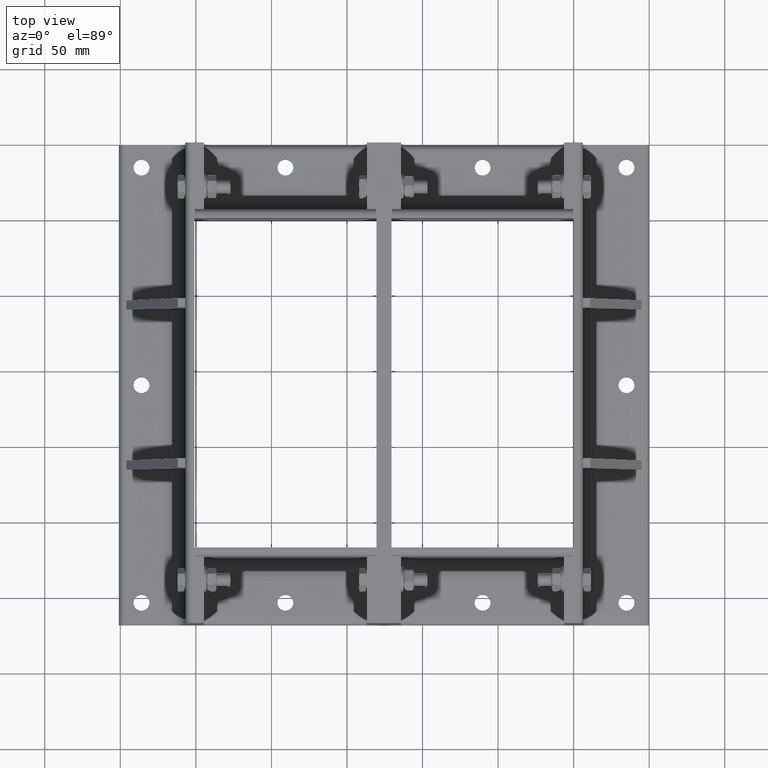
[diagram: clean part render]
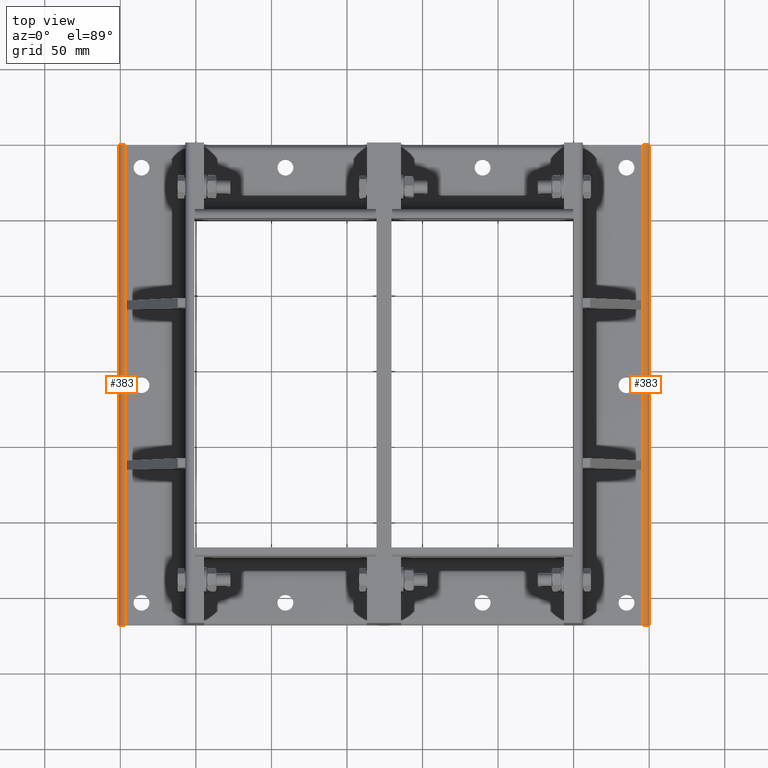
[diagram: same view with one multi-face feature highlighted, each face labeled with its STEP entity id]
A machine part, top view. The highlighted faces form ONE feature: a constant-radius fillet chain: 2 tangent blend faces with common blend radius 4.5 mm. The faces share edges in the B-rep.
Their STEP definitions:
[1] entity #383 (Cylinder):
#317=CARTESIAN_POINT('',(45.499999999999986,0.0,5.999999999999991));
#318=VERTEX_POINT('',#317);
#325=CARTESIAN_POINT('',(45.499999999999986,318.0,5.999999999999991));
#326=VERTEX_POINT('',#325);
#327=CARTESIAN_POINT('',(45.499999999999986,318.0,5.999999999999991));
#328=DIRECTION('',(0.0,-1.0,0.0));
#329=VECTOR('',#328,318.0);
#330=LINE('',#327,#329);
#331=EDGE_CURVE('',#326,#318,#330,.T.);
#351=CARTESIAN_POINT('',(45.499999999999986,0.0,1.499999999999991));
#352=DIRECTION('',(0.0,1.0,0.0));
#353=DIRECTION('',(0.707106781186547,0.0,0.707106781186548));
#354=AXIS2_PLACEMENT_3D('',#351,#352,#353);
#355=CYLINDRICAL_SURFACE('',#354,4.5);
#356=CARTESIAN_POINT('',(49.999999999999993,318.0,1.499999999999991));
#357=VERTEX_POINT('',#356);
#358=CARTESIAN_POINT('',(45.499999999999986,318.0,1.499999999999991));
#359=DIRECTION('',(0.0,-1.0,0.0));
#360=DIRECTION('',(0.707106781186547,0.0,0.707106781186548));
#361=AXIS2_PLACEMENT_3D('',#358,#359,#360);
#362=CIRCLE('',#361,4.5);
#363=EDGE_CURVE('',#357,#326,#362,.T.);
#364=ORIENTED_EDGE('',*,*,#363,.T.);
#365=ORIENTED_EDGE('',*,*,#331,.T.);
#366=CARTESIAN_POINT('',(49.999999999999993,0.0,1.499999999999991));
#367=VERTEX_POINT('',#366);
#368=CARTESIAN_POINT('',(45.499999999999986,0.0,1.499999999999991));
#369=DIRECTION('',(0.0,1.0,0.0));
#370=DIRECTION('',(0.707106781186547,0.0,0.707106781186548));
#371=AXIS2_PLACEMENT_3D('',#368,#369,#370);
#372=CIRCLE('',#371,4.5);
#373=EDGE_CURVE('',#318,#367,#372,.T.);
#374=ORIENTED_EDGE('',*,*,#373,.T.);
#375=CARTESIAN_POINT('',(49.999999999999993,0.0,1.499999999999991));
#376=DIRECTION('',(0.0,1.0,0.0));
#377=VECTOR('',#376,318.0);
#378=LINE('',#375,#377);
#379=EDGE_CURVE('',#367,#357,#378,.T.);
#380=ORIENTED_EDGE('',*,*,#379,.T.);
#381=EDGE_LOOP('',(#364,#365,#374,#380));
#382=FACE_OUTER_BOUND('',#381,.T.);
#383=ADVANCED_FACE('',(#382),#355,.T.);
[2] entity #383 (Cylinder):
#317=CARTESIAN_POINT('',(45.499999999999986,0.0,5.999999999999991));
#318=VERTEX_POINT('',#317);
#325=CARTESIAN_POINT('',(45.499999999999986,318.0,5.999999999999991));
#326=VERTEX_POINT('',#325);
#327=CARTESIAN_POINT('',(45.499999999999986,318.0,5.999999999999991));
#328=DIRECTION('',(0.0,-1.0,0.0));
#329=VECTOR('',#328,318.0);
#330=LINE('',#327,#329);
#331=EDGE_CURVE('',#326,#318,#330,.T.);
#351=CARTESIAN_POINT('',(45.499999999999986,0.0,1.499999999999991));
#352=DIRECTION('',(0.0,1.0,0.0));
#353=DIRECTION('',(0.707106781186547,0.0,0.707106781186548));
#354=AXIS2_PLACEMENT_3D('',#351,#352,#353);
#355=CYLINDRICAL_SURFACE('',#354,4.5);
#356=CARTESIAN_POINT('',(49.999999999999993,318.0,1.499999999999991));
#357=VERTEX_POINT('',#356);
#358=CARTESIAN_POINT('',(45.499999999999986,318.0,1.499999999999991));
#359=DIRECTION('',(0.0,-1.0,0.0));
#360=DIRECTION('',(0.707106781186547,0.0,0.707106781186548));
#361=AXIS2_PLACEMENT_3D('',#358,#359,#360);
#362=CIRCLE('',#361,4.5);
#363=EDGE_CURVE('',#357,#326,#362,.T.);
#364=ORIENTED_EDGE('',*,*,#363,.T.);
#365=ORIENTED_EDGE('',*,*,#331,.T.);
#366=CARTESIAN_POINT('',(49.999999999999993,0.0,1.499999999999991));
#367=VERTEX_POINT('',#366);
#368=CARTESIAN_POINT('',(45.499999999999986,0.0,1.499999999999991));
#369=DIRECTION('',(0.0,1.0,0.0));
#370=DIRECTION('',(0.707106781186547,0.0,0.707106781186548));
#371=AXIS2_PLACEMENT_3D('',#368,#369,#370);
#372=CIRCLE('',#371,4.5);
#373=EDGE_CURVE('',#318,#367,#372,.T.);
#374=ORIENTED_EDGE('',*,*,#373,.T.);
#375=CARTESIAN_POINT('',(49.999999999999993,0.0,1.499999999999991));
#376=DIRECTION('',(0.0,1.0,0.0));
#377=VECTOR('',#376,318.0);
#378=LINE('',#375,#377);
#379=EDGE_CURVE('',#367,#357,#378,.T.);
#380=ORIENTED_EDGE('',*,*,#379,.T.);
#381=EDGE_LOOP('',(#364,#365,#374,#380));
#382=FACE_OUTER_BOUND('',#381,.T.);
#383=ADVANCED_FACE('',(#382),#355,.T.);